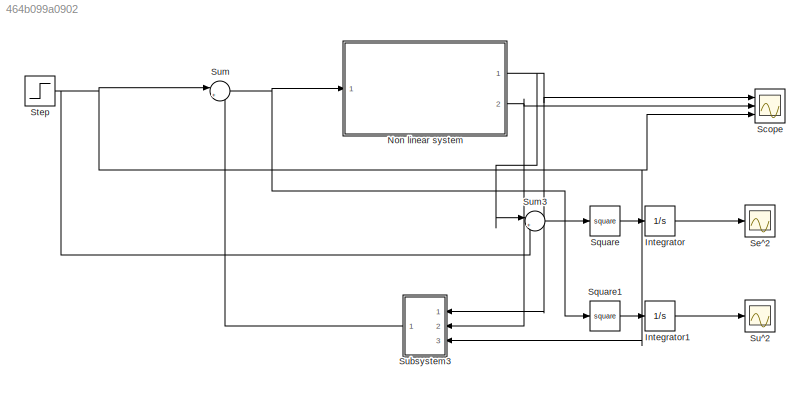
MODEL slx_464b099a0902
KIND model
CONFIG AbsTol = auto
CONFIG EnableMultiTasking = off
CONFIG FixedStep = auto
CONFIG MaxStep = auto
CONFIG MinStep = auto
CONFIG RelTol = 1e-3
CONFIG SampleTimeConstraint = Unconstrained
CONFIG Solver = VariableStepAuto
CONFIG SolverName = VariableStepAuto
CONFIG StartTime = 0.0
CONFIG StopTime = 10.0
BLOCK [Integrator] Integrator
  Ports = [1, 1]
BLOCK [Integrator] Integrator1
  Ports = [1, 1]
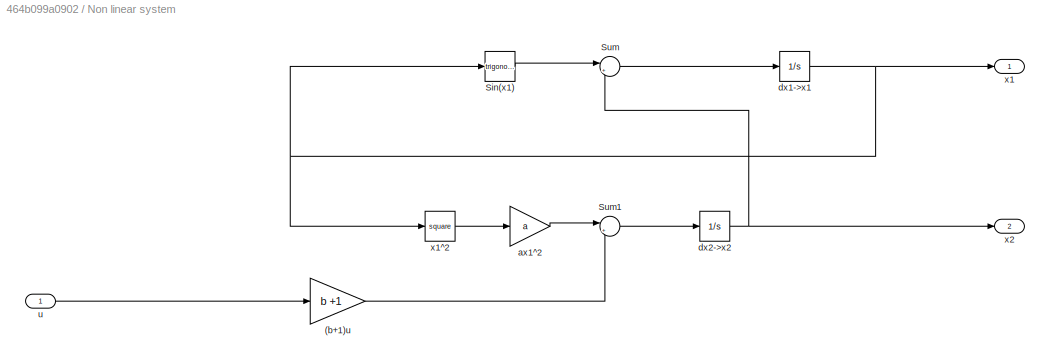
BLOCK [SubSystem] Non linear system
  Ports = [1, 2]
  RequestExecContextInheritance = off
BLOCK [Gain] Non linear system/(b+1)u
  Gain = b +1
BLOCK [Trigonometry] Non linear system/Sin(x1)
  Ports = [1, 1]
BLOCK [Sum] Non linear system/Sum
  Inputs = |++
  Ports = [2, 1]
BLOCK [Sum] Non linear system/Sum1
  Inputs = |++
  Ports = [2, 1]
BLOCK [Gain] Non linear system/ax1^2
  Gain = a
BLOCK [Integrator] Non linear system/dx1->x1
  Ports = [1, 1]
BLOCK [Integrator] Non linear system/dx2->x2
  Ports = [1, 1]
BLOCK [Inport] Non linear system/u
BLOCK [Outport] Non linear system/x1
BLOCK [Math] Non linear system/x1^2
  Operator = square
  Ports = [1, 1]
BLOCK [Outport] Non linear system/x2
  Port = 2
BLOCK [Scope] Scope
  Floating = off
  NumInputPorts = 3
  Ports = [3]
  ScopeSpecificationString = Simulink.scopes.TimeScopeBlockCfg('CurrentConfiguration', extmgr.ConfigurationSet(extmgr.Configuration('Core','General UI',true),extmgr.Configuration('Core','Source UI',true),extmgr.Configuration('Sources','WiredSimulink',true),extmgr.Configuration('Visuals','Time Domain',true,'SerializedDisplays',{struct('MinYLimReal','-3.33397','MaxYLimReal','3.33344','YLabelReal','','MinYLimMag','0.00000','MaxY...<+1452ch>
BLOCK [Scope] Se^2
  Floating = off
  NumInputPorts = 1
  Ports = [1]
  ScopeSpecificationString = Simulink.scopes.TimeScopeBlockCfg('CurrentConfiguration', extmgr.ConfigurationSet(extmgr.Configuration('Core','General UI',true),extmgr.Configuration('Core','Source UI',true),extmgr.Configuration('Sources','WiredSimulink',true,'DataLoggingVariableName','ScopeData1'),extmgr.Configuration('Visuals','Time Domain',true,'SerializedDisplays',{struct('MinYLimReal','-0.59288','MaxYLimReal','5.33592','YLab...<+1369ch>
BLOCK [Math] Square
  Operator = square
  Ports = [1, 1]
BLOCK [Math] Square1
  Operator = square
  Ports = [1, 1]
BLOCK [Step] Step
  SampleTime = 0
  Time = 0
BLOCK [Scope] Su^2
  Floating = off
  NumInputPorts = 1
  Ports = [1]
  ScopeSpecificationString = Simulink.scopes.TimeScopeBlockCfg('CurrentConfiguration', extmgr.ConfigurationSet(extmgr.Configuration('Core','General UI',true),extmgr.Configuration('Core','Source UI',true),extmgr.Configuration('Sources','WiredSimulink',true,'DataLoggingVariableName','ScopeData2'),extmgr.Configuration('Visuals','Time Domain',true,'SerializedDisplays',{struct('MinYLimReal','-7.20877','MaxYLimReal','64.87889','YLa...<+1374ch>
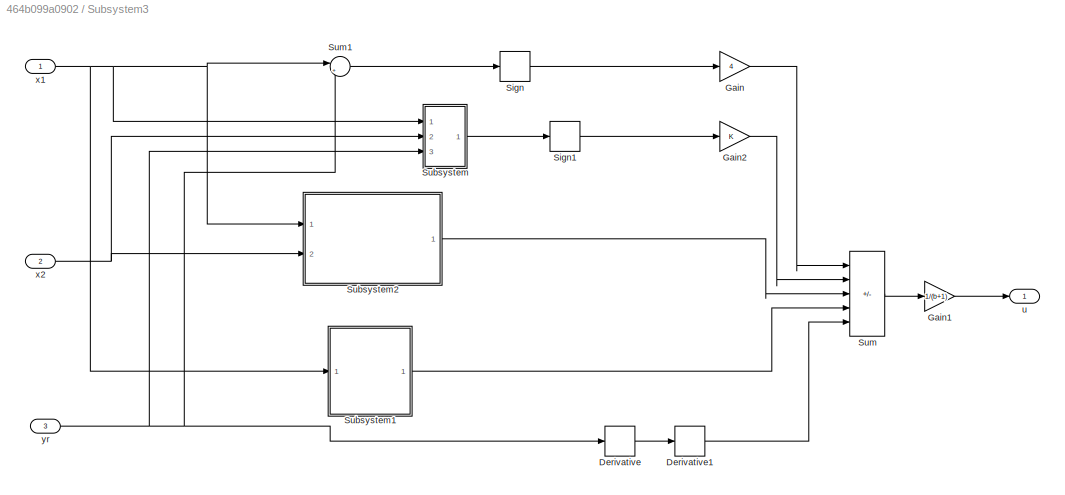
BLOCK [SubSystem] Subsystem3
  NameLocation = top
  Ports = [3, 1]
  RequestExecContextInheritance = off
BLOCK [Derivative] Subsystem3/Derivative
BLOCK [Derivative] Subsystem3/Derivative1
BLOCK [Gain] Subsystem3/Gain
  Gain = 4
BLOCK [Gain] Subsystem3/Gain1
  Gain = 1/(b+1)
BLOCK [Gain] Subsystem3/Gain2
BLOCK [Signum] Subsystem3/Sign
BLOCK [Signum] Subsystem3/Sign1
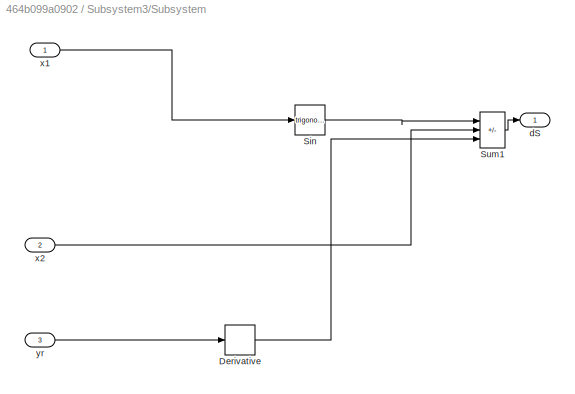
BLOCK [SubSystem] Subsystem3/Subsystem
  Ports = [3, 1]
  RequestExecContextInheritance = off
BLOCK [Derivative] Subsystem3/Subsystem/Derivative
BLOCK [Trigonometry] Subsystem3/Subsystem/Sin
  Ports = [1, 1]
BLOCK [Sum] Subsystem3/Subsystem/Sum1
  IconShape = rectangular
  Inputs = |++-
  Ports = [3, 1]
BLOCK [Outport] Subsystem3/Subsystem/dS
BLOCK [Inport] Subsystem3/Subsystem/x1
BLOCK [Inport] Subsystem3/Subsystem/x2
  Port = 2
BLOCK [Inport] Subsystem3/Subsystem/yr
  Port = 3
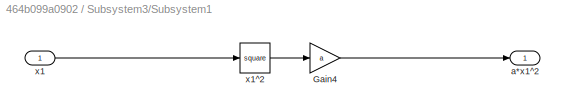
BLOCK [SubSystem] Subsystem3/Subsystem1
  Ports = [1, 1]
  RequestExecContextInheritance = off
BLOCK [Gain] Subsystem3/Subsystem1/Gain4
  Gain = a
BLOCK [Outport] Subsystem3/Subsystem1/a*x1^2
BLOCK [Inport] Subsystem3/Subsystem1/x1 
BLOCK [Math] Subsystem3/Subsystem1/x1^2
  Operator = square
  Ports = [1, 1]
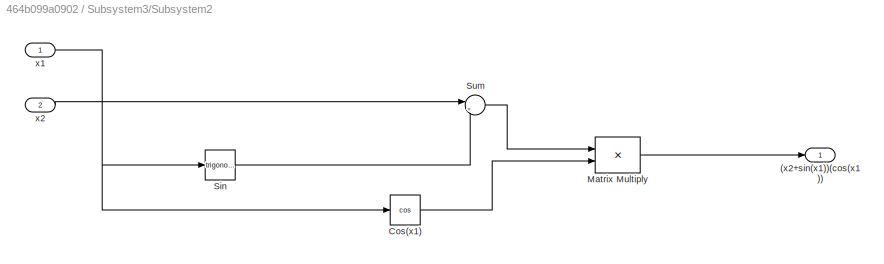
BLOCK [SubSystem] Subsystem3/Subsystem2
  Ports = [2, 1]
  RequestExecContextInheritance = off
BLOCK [Outport] Subsystem3/Subsystem2/(x2+sin(x1))(cos(x1))
BLOCK [Trigonometry] Subsystem3/Subsystem2/Cos(x1)
  Operator = cos
  Ports = [1, 1]
BLOCK [Product] Subsystem3/Subsystem2/Matrix Multiply
  Ports = [2, 1]
BLOCK [Trigonometry] Subsystem3/Subsystem2/Sin
  Ports = [1, 1]
BLOCK [Sum] Subsystem3/Subsystem2/Sum
  Inputs = |++
  Ports = [2, 1]
BLOCK [Inport] Subsystem3/Subsystem2/x1 
BLOCK [Inport] Subsystem3/Subsystem2/x2
  Port = 2
BLOCK [Sum] Subsystem3/Sum
  IconShape = rectangular
  Inputs = |----+
  Ports = [5, 1]
BLOCK [Sum] Subsystem3/Sum1
  Inputs = |+-
  Ports = [2, 1]
BLOCK [Outport] Subsystem3/u
BLOCK [Inport] Subsystem3/x1
BLOCK [Inport] Subsystem3/x2
  Port = 2
BLOCK [Inport] Subsystem3/yr
  Port = 3
BLOCK [Sum] Sum
  Inputs = |++
  Ports = [2, 1]
BLOCK [Sum] Sum3
  Inputs = |+-
  Ports = [2, 1]
LINE Integrator1:1 -> Su^2:1
LINE Integrator:1 -> Se^2:1
LINE Non linear system/(b+1)u:1 -> Non linear system/Sum1:2
LINE Non linear system/Sin(x1):1 -> Non linear system/Sum:1
LINE Non linear system/Sum1:1 -> Non linear system/dx2->x2:1
LINE Non linear system/Sum:1 -> Non linear system/dx1->x1:1
LINE Non linear system/ax1^2:1 -> Non linear system/Sum1:1
NET Non linear system/dx1->x1:1 -> Non linear system/Sin(x1):1, Non linear system/x1:1, Non linear system/x1^2:1
NET Non linear system/dx2->x2:1 -> Non linear system/Sum:2, Non linear system/x2:1
LINE Non linear system/u:1 -> Non linear system/(b+1)u:1
LINE Non linear system/x1^2:1 -> Non linear system/ax1^2:1
NET Non linear system:1 -> Scope:1, Subsystem3:1, Sum3:1
NET Non linear system:2 -> Scope:2, Subsystem3:2
LINE Square1:1 -> Integrator1:1
LINE Square:1 -> Integrator:1
NET Step:1 -> Scope:3, Subsystem3:3, Sum3:2, Sum:1
LINE Subsystem3/Derivative1:1 -> Subsystem3/Sum:5
LINE Subsystem3/Derivative:1 -> Subsystem3/Derivative1:1
LINE Subsystem3/Gain1:1 -> Subsystem3/u:1
LINE Subsystem3/Gain2:1 -> Subsystem3/Sum:2
LINE Subsystem3/Gain:1 -> Subsystem3/Sum:1
LINE Subsystem3/Sign1:1 -> Subsystem3/Gain2:1
LINE Subsystem3/Sign:1 -> Subsystem3/Gain:1
LINE Subsystem3/Subsystem/Derivative:1 -> Subsystem3/Subsystem/Sum1:3
LINE Subsystem3/Subsystem/Sin:1 -> Subsystem3/Subsystem/Sum1:1
LINE Subsystem3/Subsystem/Sum1:1 -> Subsystem3/Subsystem/dS:1
LINE Subsystem3/Subsystem/x1:1 -> Subsystem3/Subsystem/Sin:1
LINE Subsystem3/Subsystem/x2:1 -> Subsystem3/Subsystem/Sum1:2
LINE Subsystem3/Subsystem/yr:1 -> Subsystem3/Subsystem/Derivative:1
LINE Subsystem3/Subsystem1/Gain4:1 -> Subsystem3/Subsystem1/a*x1^2:1
LINE Subsystem3/Subsystem1/x1 :1 -> Subsystem3/Subsystem1/x1^2:1
LINE Subsystem3/Subsystem1/x1^2:1 -> Subsystem3/Subsystem1/Gain4:1
LINE Subsystem3/Subsystem1:1 -> Subsystem3/Sum:4
LINE Subsystem3/Subsystem2/Cos(x1):1 -> Subsystem3/Subsystem2/Matrix Multiply:2
LINE Subsystem3/Subsystem2/Matrix Multiply:1 -> Subsystem3/Subsystem2/(x2+sin(x1))(cos(x1)):1
LINE Subsystem3/Subsystem2/Sin:1 -> Subsystem3/Subsystem2/Sum:2
LINE Subsystem3/Subsystem2/Sum:1 -> Subsystem3/Subsystem2/Matrix Multiply:1
NET Subsystem3/Subsystem2/x1 :1 -> Subsystem3/Subsystem2/Cos(x1):1, Subsystem3/Subsystem2/Sin:1
LINE Subsystem3/Subsystem2/x2:1 -> Subsystem3/Subsystem2/Sum:1
LINE Subsystem3/Subsystem2:1 -> Subsystem3/Sum:3
LINE Subsystem3/Subsystem:1 -> Subsystem3/Sign1:1
LINE Subsystem3/Sum1:1 -> Subsystem3/Sign:1
LINE Subsystem3/Sum:1 -> Subsystem3/Gain1:1
NET Subsystem3/x1:1 -> Subsystem3/Subsystem1:1, Subsystem3/Subsystem2:1, Subsystem3/Subsystem:1, Subsystem3/Sum1:1
NET Subsystem3/x2:1 -> Subsystem3/Subsystem2:2, Subsystem3/Subsystem:2
NET Subsystem3/yr:1 -> Subsystem3/Derivative:1, Subsystem3/Subsystem:3, Subsystem3/Sum1:2
LINE Subsystem3:1 -> Sum:2
LINE Sum3:1 -> Square:1
NET Sum:1 -> Non linear system:1, Square1:1
note: NET lines group one-source signal fan-out (src -> all destinations, sorted); 1:1 wires keep LINE
